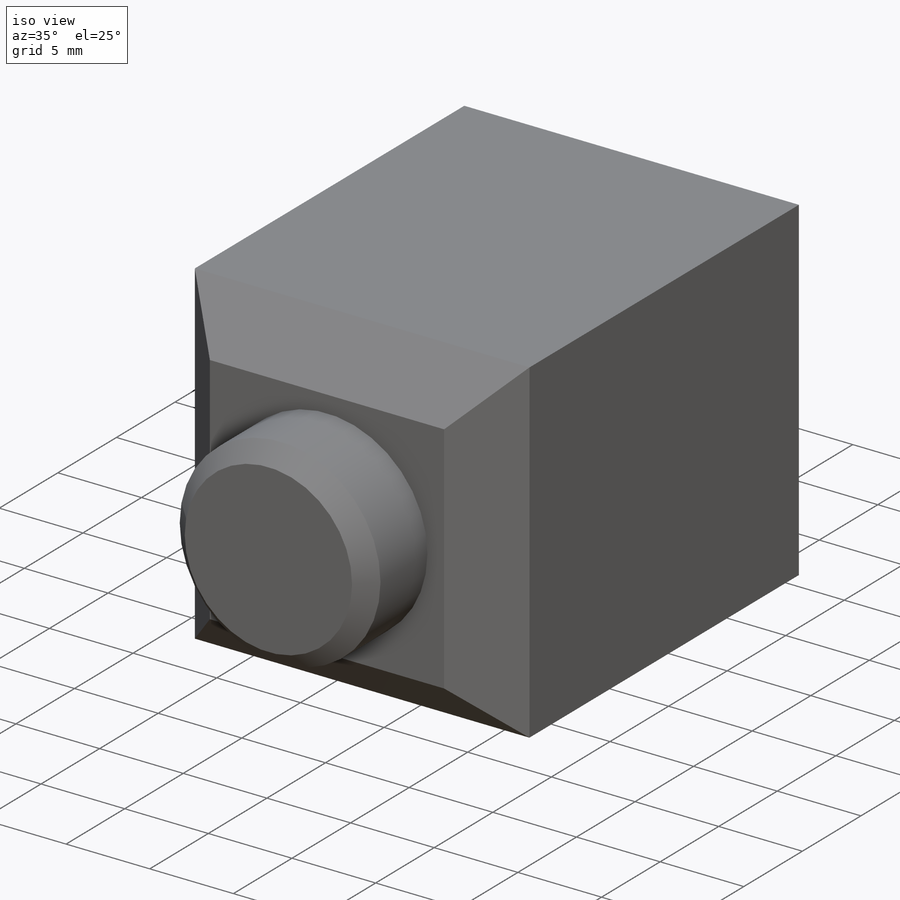
[diagram: iso view]
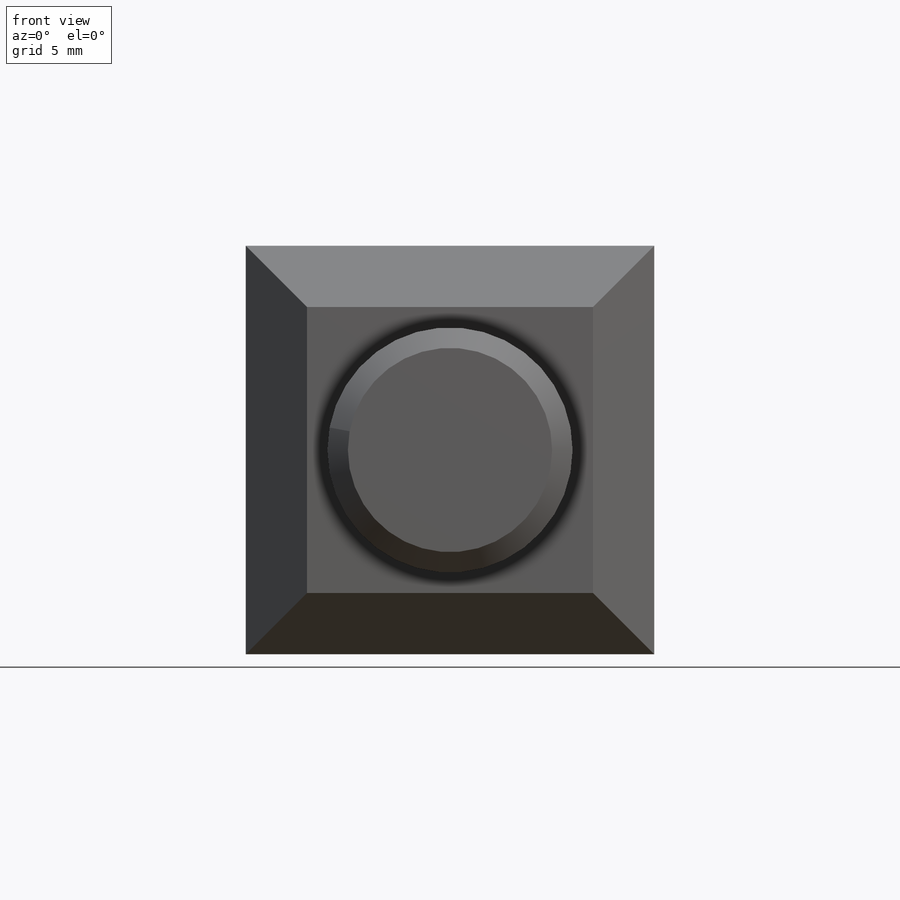
[diagram: front view]
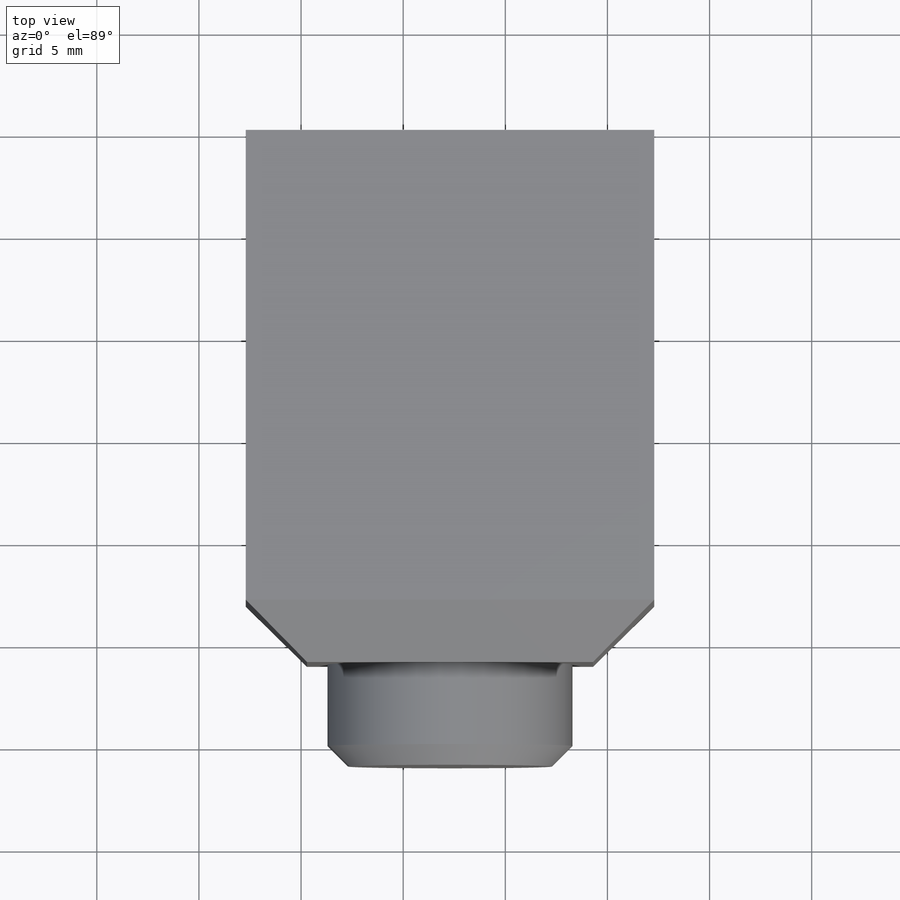
[diagram: top view]
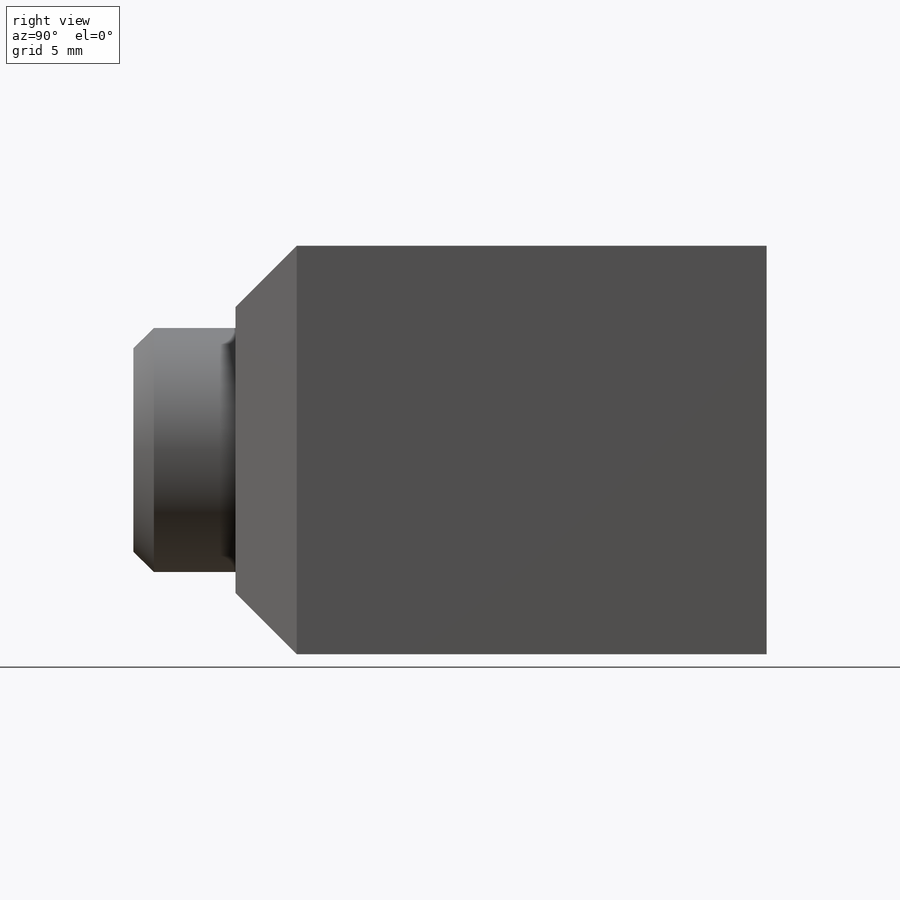
[diagram: right view]
SOLIDWORKS PART (.sldprt)
format: sldprt  version: not decoded by parser v0  size: 99,840 bytes
history: native  units: mm
features: sketch x2, extrude x2, chamfer x2, material x1 (+15 scaffold rows collapsed)
feature tree (22):
  scaffold x15  (default folders/planes/origin — collapsed)
  material  "Material <not specified>"
  sketch  "Sketch1"  dims[D1=20.0mm D2=20.0mm]
  extrude  "Extrude1"  Depth=26mm
  chamfer  "Chamfer1"  Distance=3mm Angle=45deg
  sketch  "Sketch3"  dims[D1=12.0mm]
  extrude  "Extrude3"  Depth=5mm
  chamfer  "Chamfer2"  Distance=1mm Angle=45deg
decode coverage: 6 of 6 modeling features carry decoded parameters
note: suppression state not decoded; provenance and decode notes live in map.json
